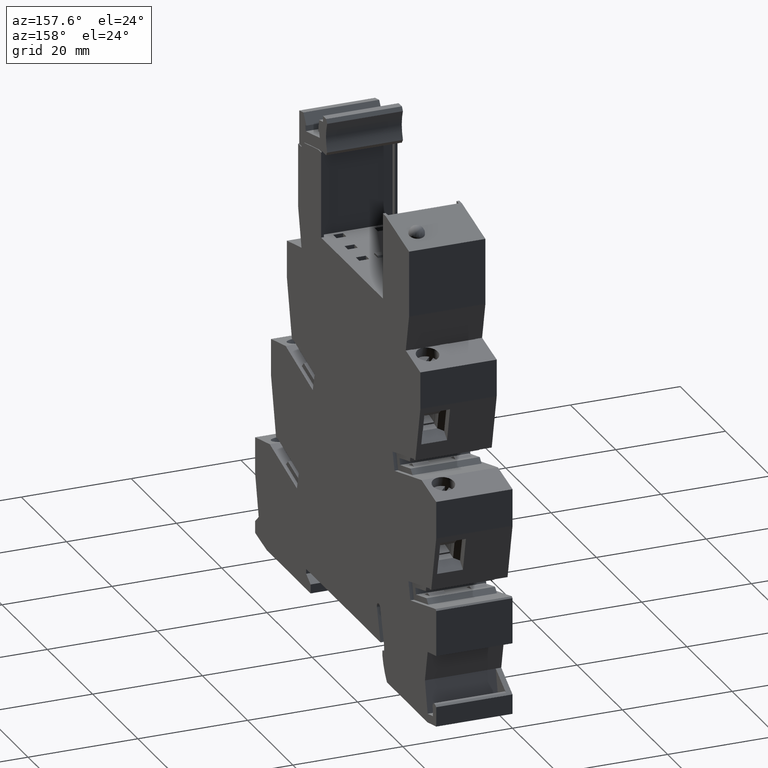
[diagram: clean part render]
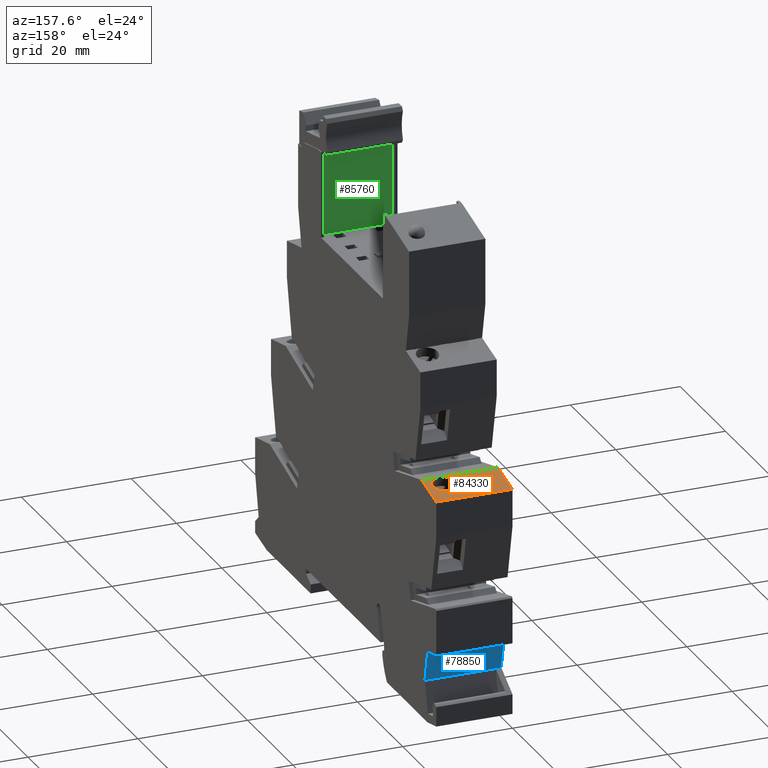
[diagram: same view with three faces highlighted in distinct colors, each labeled with its STEP entity id]
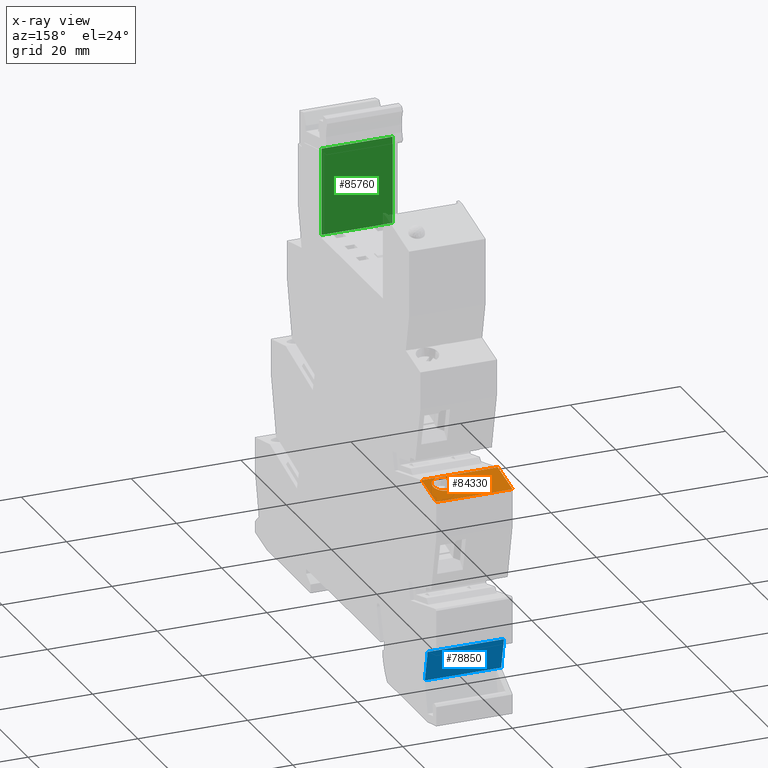
[diagram: x-ray of the same camera — body ghosted, the three highlighted faces saturated]
A machine part, auxiliary view with three faces highlighted in distinct colors.
The next image is the same camera in x-ray (body ghosted, the three faces saturated) — at least one of them is partly hidden behind the body in this view.
Their STEP definitions:

[orange] entity #84330 — the highlighted planar face has unit normal (-0, -0.2079, -0.9781).
#3320=CARTESIAN_POINT('',(-32.2370658522471,34.5722171242985,
-14.7000000000046));
#3330=VERTEX_POINT('',#3320);
#3360=CARTESIAN_POINT('',(13.902360681364,44.3794549857209,
-14.7000000000029));
#3370=DIRECTION('',(-0.978147600733756,-0.207911690817991,
2.6505726415426E-28));
#3380=VECTOR('',#3370,1.);
#3390=LINE('',#3360,#3380);
#3400=CARTESIAN_POINT('',(-38.6928398520729,33.1999999999752,
-14.7000000000046));
#3410=VERTEX_POINT('',#3400);
#3420=EDGE_CURVE('',#3330,#3410,#3390,.T.);
#10640=CARTESIAN_POINT('',(-38.6928398520737,33.1999999999753,
-0.800000000002644));
#10650=VERTEX_POINT('',#10640);
#10680=CARTESIAN_POINT('',(13.902360681364,44.3794549857211,
-0.800000000002909));
#10690=DIRECTION('',(-0.978147600733756,-0.207911690817991,
2.6505726415426E-28));
#10700=VECTOR('',#10690,1.);
#10710=LINE('',#10680,#10700);
#10720=CARTESIAN_POINT('',(-32.237065852248,34.5722171242985,
-0.800000000002683));
#10730=VERTEX_POINT('',#10720);
#10740=EDGE_CURVE('',#10730,#10650,#10710,.T.);
#83660=CARTESIAN_POINT('',(-38.6928398520738,33.1999999999753,
-9.40000000000667));
#83670=DIRECTION('',(-1.89326617253043E-28,-3.85950197879369E-28,-1.));
#83680=VECTOR('',#83670,1.);
#83690=LINE('',#83660,#83680);
#83700=EDGE_CURVE('',#10650,#3410,#83690,.T.);
#83820=CARTESIAN_POINT('',(-32.2370659113438,34.5722171117371,
-14.7000000000054));
#83830=DIRECTION('',(0.207911690817991,-0.978147600733756,
1.3055647197304E-14));
#83840=DIRECTION('',(0.978147600733756,0.207911690817991,
6.14219909030724E-14));
#83850=AXIS2_PLACEMENT_3D('',#83820,#83830,#83840);
#83860=PLANE('',#83850);
#83870=ORIENTED_EDGE('',*,*,#10740,.F.);
#83880=ORIENTED_EDGE('',*,*,#83700,.F.);
#83890=ORIENTED_EDGE('',*,*,#3420,.T.);
#83900=CARTESIAN_POINT('',(-32.237065852248,34.5722171242985,
0.100000000001452));
#83910=DIRECTION('',(6.27941947176454E-14,-4.31102392445492E-27,-1.));
#83920=VECTOR('',#83910,1.);
#83930=LINE('',#83900,#83920);
#83940=EDGE_CURVE('',#10730,#3330,#83930,.T.);
#83950=ORIENTED_EDGE('',*,*,#83940,.T.);
#83960=EDGE_LOOP('',(#83950,#83890,#83880,#83870));
#83970=FACE_OUTER_BOUND('',#83960,.T.);
#83980=CARTESIAN_POINT('',(-32.2643919665595,34.5664087793968,
-11.9334045298609));
#83990=CARTESIAN_POINT('',(-32.2643919665595,34.5664087793969,
-11.1665954701526));
#84000=CARTESIAN_POINT('',(-32.3721924358499,34.543495082298,
-10.7912587803388));
#84010=CARTESIAN_POINT('',(-32.7777014012136,34.4573014908938,
-10.1461779498523));
#84020=CARTESIAN_POINT('',(-33.0668769217669,34.3958353365258,
-9.89000800705206));
#84030=CARTESIAN_POINT('',(-33.7491486211807,34.2508140099734,
-9.57146401154339));
#84040=CARTESIAN_POINT('',(-34.1278880084379,34.1703104680489,
-9.51579296258546));
#84050=CARTESIAN_POINT('',(-34.8703059980394,34.012504652857,
-9.62492126990432));
#84060=CARTESIAN_POINT('',(-35.2183621725908,33.9385230291262,
-9.78742427948001));
#84070=CARTESIAN_POINT('',(-35.7852139863564,33.8180349566155,
-10.2895774231164));
#84080=CARTESIAN_POINT('',(-35.9920815720295,33.7740638938838,
-10.6186609338769));
#84090=CARTESIAN_POINT('',(-36.2033957642721,33.7291476757486,
-11.3544088387709));
#84100=CARTESIAN_POINT('',(-36.2033957642721,33.7291476757486,
-11.7455911612426));
#84110=CARTESIAN_POINT('',(-35.9920815720295,33.7740638938838,
-12.4813390661366));
#84120=CARTESIAN_POINT('',(-35.7852139863564,33.8180349566155,
-12.810422576897));
#84130=CARTESIAN_POINT('',(-35.2183621725908,33.9385230291261,
-13.3125757205335));
#84140=CARTESIAN_POINT('',(-34.8703059980394,34.0125046528569,
-13.4750787301092));
#84150=CARTESIAN_POINT('',(-34.1278880084379,34.1703104680488,
-13.5842070374281));
#84160=CARTESIAN_POINT('',(-33.7491486211807,34.2508140099733,
-13.5285359884701));
#84170=CARTESIAN_POINT('',(-33.0668769217669,34.3958353365257,
-13.2099919929615));
#84180=CARTESIAN_POINT('',(-32.7777014012136,34.4573014908938,
-12.9538220501612));
#84190=CARTESIAN_POINT('',(-32.3721924358499,34.543495082298,
-12.3087412196747));
#84200=CARTESIAN_POINT('',(-32.2643919665595,34.5664087793968,
-11.9334045298609));
#84210=CARTESIAN_POINT('',(-32.2643919665595,34.5664087793969,
-11.1665954701526));
#84220=B_SPLINE_CURVE_WITH_KNOTS('',3,(#83980,#83990,#84000,#84010,
#84020,#84030,#84040,#84050,#84060,#84070,#84080,#84090,#84100,#84110,
#84120,#84130,#84140,#84150,#84160,#84170,#84180,#84190,#84200,#84210),
.UNSPECIFIED.,.T.,.F.,(2,2,2,2,2,2,2,2,2,2,2,2,2,2),(-1.,0.,1.,2.,3.,4.,
5.,6.,7.,8.,9.,10.,11.,12.),.UNSPECIFIED.);
#84230=CARTESIAN_POINT('',(-32.2643919665595,34.5664087793968,
-11.5500000000068));
#84240=VERTEX_POINT('',#84230);
#84250=CARTESIAN_POINT('',(-36.1769814902418,33.7347622030155,
-11.5500000000067));
#84260=VERTEX_POINT('',#84250);
#84270=EDGE_CURVE('',#84240,#84260,#84220,.T.);
#84280=ORIENTED_EDGE('',*,*,#84270,.T.);
#84290=EDGE_CURVE('',#84260,#84240,#84220,.T.);
#84300=ORIENTED_EDGE('',*,*,#84290,.T.);
#84310=EDGE_LOOP('',(#84300,#84280));
#84320=FACE_BOUND('',#84310,.T.);
#84330=ADVANCED_FACE('',(#83970,#84320),#83860,.F.);

[blue] entity #78850 — the highlighted planar face has unit normal (-0, -0.9785, 0.206).
#4200=CARTESIAN_POINT('',(-34.9111896091923,4.00386307561681,
-14.7000000000029));
#4210=VERTEX_POINT('',#4200);
#4240=CARTESIAN_POINT('',(-44.8273914139078,51.1058216480335,
-14.7000000000029));
#4250=DIRECTION('',(0.206010481049782,-0.978549784986762,
3.34477023813709E-28));
#4260=VECTOR('',#4250,1.);
#4270=LINE('',#4240,#4260);
#4280=CARTESIAN_POINT('',(-33.7002853817285,-1.74793200483455,
-14.7000000000046));
#4290=VERTEX_POINT('',#4280);
#4300=EDGE_CURVE('',#4210,#4290,#4270,.T.);
#9760=CARTESIAN_POINT('',(-33.7002853817293,-1.74793200483453,
-0.800000000002674));
#9770=VERTEX_POINT('',#9760);
#9800=CARTESIAN_POINT('',(-44.8273914139087,51.1058216480335,
-0.800000000002909));
#9810=DIRECTION('',(0.206010481049782,-0.978549784986762,
3.34477023813709E-28));
#9820=VECTOR('',#9810,1.);
#9830=LINE('',#9800,#9820);
#9840=CARTESIAN_POINT('',(-34.9111896091924,4.00386307561664,
-0.800000000002909));
#9850=VERTEX_POINT('',#9840);
#9860=EDGE_CURVE('',#9850,#9770,#9830,.T.);
#12300=CARTESIAN_POINT('',(-33.7002853817293,-1.74793200483456,
-1.80000000000049));
#12310=VERTEX_POINT('',#12300);
#12340=CARTESIAN_POINT('',(-33.7002853817293,-1.74793200483504,
0.10000000000158));
#12350=DIRECTION('',(5.52864167593382E-14,3.5661945301966E-14,-1.));
#12360=VECTOR('',#12350,1.);
#12370=LINE('',#12340,#12360);
#12380=EDGE_CURVE('',#9770,#12310,#12370,.T.);
#78630=CARTESIAN_POINT('',(-34.9111896091915,4.00386307561664,
-14.7000000000056));
#78640=DIRECTION('',(0.978549784986762,0.206010481049782,
6.14472457393679E-14));
#78650=DIRECTION('',(-0.206010481049782,0.978549784986762,
-1.29362622609201E-14));
#78660=AXIS2_PLACEMENT_3D('',#78630,#78640,#78650);
#78670=PLANE('',#78660);
#78680=CARTESIAN_POINT('',(-33.7002853817293,-1.74793200483504,
0.10000000000158));
#78690=DIRECTION('',(-5.52864167593382E-14,-3.5661945301966E-14,1.));
#78700=VECTOR('',#78690,1.);
#78710=LINE('',#78680,#78700);
#78720=EDGE_CURVE('',#4290,#12310,#78710,.T.);
#78730=ORIENTED_EDGE('',*,*,#78720,.T.);
#78740=ORIENTED_EDGE('',*,*,#4300,.T.);
#78750=CARTESIAN_POINT('',(-34.9111896091923,4.00386307561664,
-0.800000000002907));
#78760=DIRECTION('',(-6.57063892552745E-14,1.3832924053747E-14,1.));
#78770=VECTOR('',#78760,1.);
#78780=LINE('',#78750,#78770);
#78790=EDGE_CURVE('',#4210,#9850,#78780,.T.);
#78800=ORIENTED_EDGE('',*,*,#78790,.F.);
#78810=ORIENTED_EDGE('',*,*,#9860,.F.);
#78820=ORIENTED_EDGE('',*,*,#12380,.F.);
#78830=EDGE_LOOP('',(#78820,#78810,#78800,#78740,#78730));
#78840=FACE_OUTER_BOUND('',#78830,.T.);
#78850=ADVANCED_FACE('',(#78840),#78670,.F.);

[green] entity #85760 — the highlighted planar face has unit normal (0, -1, 0).
#72100=CARTESIAN_POINT('',(13.1571600000003,60.9999999789284,
-14.200000000007));
#72110=VERTEX_POINT('',#72100);
#72140=CARTESIAN_POINT('',(13.1571600000003,60.9999999789284,
-13.800000000007));
#72150=DIRECTION('',(5.99642204871645E-15,-8.82503143234995E-30,1.));
#72160=VECTOR('',#72150,1.);
#72170=LINE('',#72140,#72160);
#72180=CARTESIAN_POINT('',(13.1571600056445,60.9999999789284,
-1.30000000000503));
#72190=VERTEX_POINT('',#72180);
#72200=EDGE_CURVE('',#72110,#72190,#72170,.T.);
#85460=CARTESIAN_POINT('',(13.1571600000003,60.9999999789284,
-14.200000000007));
#85470=DIRECTION('',(1.,6.05765437811046E-15,-5.99642204871645E-15));
#85480=DIRECTION('',(5.99642204871645E-15,-8.82503143234995E-30,1.));
#85490=AXIS2_PLACEMENT_3D('',#85460,#85470,#85480);
#85500=PLANE('',#85490);
#85510=ORIENTED_EDGE('',*,*,#72200,.T.);
#85520=CARTESIAN_POINT('',(13.1571600000007,7.105427357601E-15,
-14.2000000000071));
#85530=DIRECTION('',(-6.05765437811046E-15,1.,4.53595020502082E-29));
#85540=VECTOR('',#85530,1.);
#85550=LINE('',#85520,#85540);
#85560=CARTESIAN_POINT('',(13.1571600000002,76.9000000000087,
-14.2000000000071));
#85570=VERTEX_POINT('',#85560);
#85580=EDGE_CURVE('',#72110,#85570,#85550,.T.);
#85590=ORIENTED_EDGE('',*,*,#85580,.F.);
#85600=CARTESIAN_POINT('',(13.1571600000003,76.89999999999,
1.77635683940025E-15));
#85610=DIRECTION('',(5.99642204872442E-15,-1.31743292778328E-12,1.));
#85620=VECTOR('',#85610,1.);
#85630=LINE('',#85600,#85620);
#85640=CARTESIAN_POINT('',(13.1571600000003,76.8999999999917,
-1.30000000000503));
#85650=VERTEX_POINT('',#85640);
#85660=EDGE_CURVE('',#85570,#85650,#85630,.T.);
#85670=ORIENTED_EDGE('',*,*,#85660,.F.);
#85680=CARTESIAN_POINT('',(13.1571600000008,7.105427357601E-15,
-1.30000000000503));
#85690=DIRECTION('',(-6.05765437811046E-15,1.,4.53595020502082E-29));
#85700=VECTOR('',#85690,1.);
#85710=LINE('',#85680,#85700);
#85720=EDGE_CURVE('',#72190,#85650,#85710,.T.);
#85730=ORIENTED_EDGE('',*,*,#85720,.T.);
#85740=EDGE_LOOP('',(#85730,#85670,#85590,#85510));
#85750=FACE_OUTER_BOUND('',#85740,.T.);
#85760=ADVANCED_FACE('',(#85750),#85500,.F.);